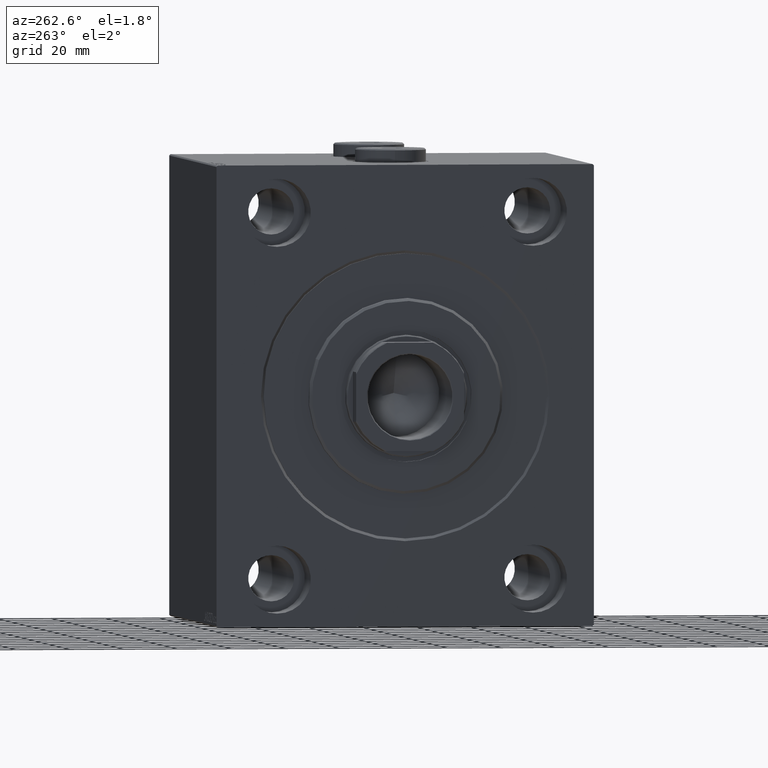
[diagram: clean part render]
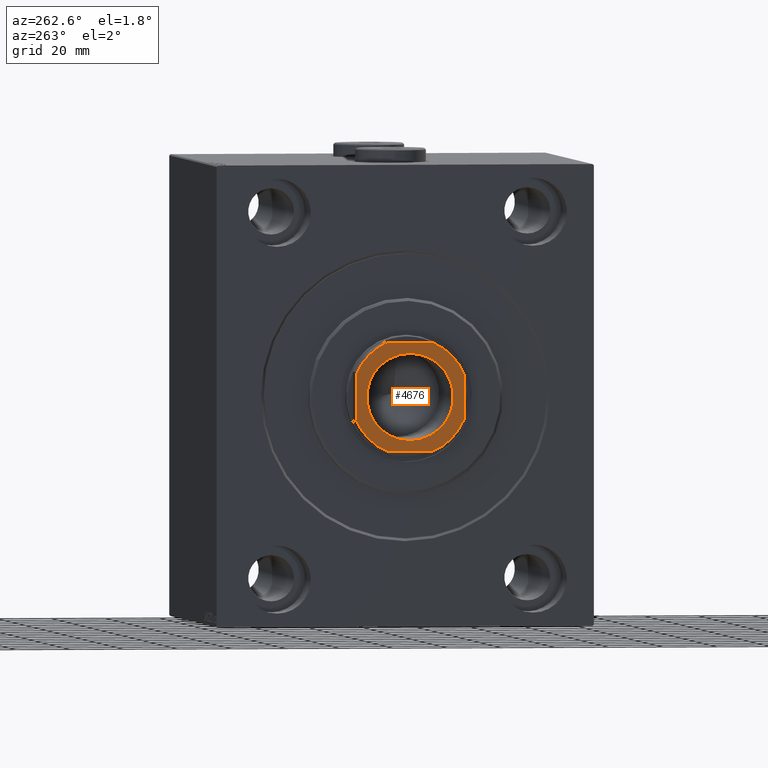
[diagram: same view with one face highlighted and labeled with its STEP entity id]
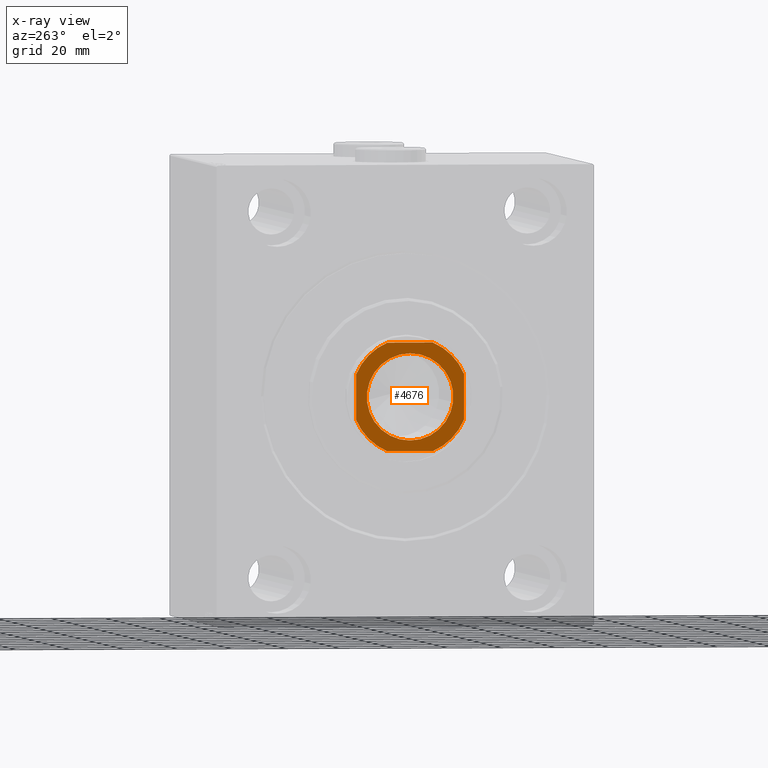
[diagram: x-ray of the same camera — body ghosted, the highlighted face saturated]
A machine part, auxiliary view. The second image highlights one B-rep face of the part: STEP entity #4676.
The next image is the same camera in x-ray: the body ghosted, the highlighted face saturated — about 0% of this face is hidden behind the body in this view.
In plain terms, the highlighted planar face has unit normal (-1, 0, 0).
Its self-contained STEP definition (entity closure, byte-faithful):
#11 = DIRECTION ( 'NONE',  ( 1.000000000000000000, 0.000000000000000000, 0.000000000000000000 ) ) ;
#673 = FACE_OUTER_BOUND ( 'NONE', #36824, .T. ) ;
#923 = EDGE_CURVE ( 'NONE', #41011, #27103, #29049, .T. ) ;
#1531 = VECTOR ( 'NONE', #15145, 1000.000000000000000 ) ;
#1648 = ORIENTED_EDGE ( 'NONE', *, *, #41268, .T. ) ;
#2029 = ORIENTED_EDGE ( 'NONE', *, *, #24207, .T. ) ;
#2078 = DIRECTION ( 'NONE',  ( -2.602085213965210149E-16, 1.000000000000000000, -0.000000000000000000 ) ) ;
#2164 = CARTESIAN_POINT ( 'NONE',  ( 0.000000000000000000, 0.000000000000000000, 64.99999999999998579 ) ) ;
#3397 = ORIENTED_EDGE ( 'NONE', *, *, #35461, .T. ) ;
#3715 = DIRECTION ( 'NONE',  ( 1.000000000000000000, 0.000000000000000000, 0.000000000000000000 ) ) ;
#3768 = DIRECTION ( 'NONE',  ( -1.000000000000000000, -8.673617379884035472E-17, -0.000000000000000000 ) ) ;
#4646 = VERTEX_POINT ( 'NONE', #38772 ) ;
#4676 = ADVANCED_FACE ( 'NONE', ( #27620, #673 ), #39005, .T. ) ;
#4681 = EDGE_CURVE ( 'NONE', #27103, #41011, #11596, .T. ) ;
#5441 = EDGE_CURVE ( 'NONE', #20446, #16050, #12238, .T. ) ;
#7042 = AXIS2_PLACEMENT_3D ( 'NONE', #37673, #40880, #41326 ) ;
#8657 = AXIS2_PLACEMENT_3D ( 'NONE', #24629, #13918, #14354 ) ;
#8899 = EDGE_CURVE ( 'NONE', #33283, #20446, #30145, .T. ) ;
#9004 = VERTEX_POINT ( 'NONE', #30828 ) ;
#9588 = VERTEX_POINT ( 'NONE', #23643 ) ;
#9604 = EDGE_CURVE ( 'NONE', #9588, #9004, #17679, .T. ) ;
#10147 = CIRCLE ( 'NONE', #35650, 21.70000000000001705 ) ;
#10684 = EDGE_CURVE ( 'NONE', #16050, #4646, #11070, .T. ) ;
#10872 = VECTOR ( 'NONE', #2078, 1000.000000000000000 ) ;
#10903 = ORIENTED_EDGE ( 'NONE', *, *, #923, .T. ) ;
#11070 = LINE ( 'NONE', #35476, #12366 ) ;
#11596 = CIRCLE ( 'NONE', #8657, 16.04999999999996874 ) ;
#12160 = ORIENTED_EDGE ( 'NONE', *, *, #9604, .T. ) ;
#12238 = CIRCLE ( 'NONE', #26909, 21.70000000000000639 ) ;
#12366 = VECTOR ( 'NONE', #3768, 1000.000000000000000 ) ;
#12900 = CARTESIAN_POINT ( 'NONE',  ( 8.419619943916702098, -20.00000000000001066, 64.99999999999998579 ) ) ;
#13293 = EDGE_LOOP ( 'NONE', ( #34259, #10903 ) ) ;
#13362 = DIRECTION ( 'NONE',  ( -0.000000000000000000, 0.000000000000000000, 1.000000000000000000 ) ) ;
#13918 = DIRECTION ( 'NONE',  ( 0.000000000000000000, -0.000000000000000000, -1.000000000000000000 ) ) ;
#14145 = EDGE_CURVE ( 'NONE', #26152, #19473, #15607, .T. ) ;
#14249 = DIRECTION ( 'NONE',  ( 1.000000000000000000, 0.000000000000000000, 0.000000000000000000 ) ) ;
#14354 = DIRECTION ( 'NONE',  ( 1.000000000000000000, 0.000000000000000000, 0.000000000000000000 ) ) ;
#14578 = DIRECTION ( 'NONE',  ( -0.000000000000000000, 0.000000000000000000, 1.000000000000000000 ) ) ;
#15145 = DIRECTION ( 'NONE',  ( 1.000000000000000000, 0.000000000000000000, 0.000000000000000000 ) ) ;
#15607 = LINE ( 'NONE', #43456, #1531 ) ;
#16050 = VERTEX_POINT ( 'NONE', #36535 ) ;
#17337 = CARTESIAN_POINT ( 'NONE',  ( 0.000000000000000000, 0.000000000000000000, 64.99999999999998579 ) ) ;
#17405 = CARTESIAN_POINT ( 'NONE',  ( 16.04999999999996874, 0.000000000000000000, 64.99999999999998579 ) ) ;
#17679 = LINE ( 'NONE', #31822, #24712 ) ;
#18425 = CIRCLE ( 'NONE', #43943, 21.70000000000000639 ) ;
#19410 = CARTESIAN_POINT ( 'NONE',  ( 19.99999999999999289, 19.99999999999999289, 64.99999999999998579 ) ) ;
#19473 = VERTEX_POINT ( 'NONE', #12900 ) ;
#20446 = VERTEX_POINT ( 'NONE', #33390 ) ;
#21055 = CARTESIAN_POINT ( 'NONE',  ( 0.000000000000000000, 0.000000000000000000, 64.99999999999998579 ) ) ;
#21905 = DIRECTION ( 'NONE',  ( 1.000000000000000000, 0.000000000000000000, 0.000000000000000000 ) ) ;
#21922 = CARTESIAN_POINT ( 'NONE',  ( 20.00000000000000000, -8.419619943916732296, 64.99999999999998579 ) ) ;
#22581 = DIRECTION ( 'NONE',  ( -0.000000000000000000, 0.000000000000000000, 1.000000000000000000 ) ) ;
#23643 = CARTESIAN_POINT ( 'NONE',  ( -20.00000000000000355, 8.419619943916735849, 64.99999999999998579 ) ) ;
#24207 = EDGE_CURVE ( 'NONE', #19473, #33283, #18425, .T. ) ;
#24629 = CARTESIAN_POINT ( 'NONE',  ( 0.000000000000000000, 0.000000000000000000, 64.99999999999998579 ) ) ;
#24712 = VECTOR ( 'NONE', #38904, 1000.000000000000000 ) ;
#25168 = ORIENTED_EDGE ( 'NONE', *, *, #5441, .T. ) ;
#25424 = CARTESIAN_POINT ( 'NONE',  ( -8.419619943916726967, -20.00000000000001066, 64.99999999999998579 ) ) ;
#25792 = CARTESIAN_POINT ( 'NONE',  ( 0.000000000000000000, 0.000000000000000000, 64.99999999999998579 ) ) ;
#26152 = VERTEX_POINT ( 'NONE', #25424 ) ;
#26725 = CIRCLE ( 'NONE', #7042, 21.70000000000001705 ) ;
#26909 = AXIS2_PLACEMENT_3D ( 'NONE', #35017, #13362, #14249 ) ;
#27103 = VERTEX_POINT ( 'NONE', #17405 ) ;
#27620 = FACE_BOUND ( 'NONE', #13293, .T. ) ;
#29049 = CIRCLE ( 'NONE', #41483, 16.04999999999996874 ) ;
#29072 = ORIENTED_EDGE ( 'NONE', *, *, #10684, .T. ) ;
#30145 = LINE ( 'NONE', #19410, #10872 ) ;
#30828 = CARTESIAN_POINT ( 'NONE',  ( -20.00000000000000000, -8.419619943916748284, 64.99999999999998579 ) ) ;
#30855 = ORIENTED_EDGE ( 'NONE', *, *, #8899, .T. ) ;
#31822 = CARTESIAN_POINT ( 'NONE',  ( -20.00000000000000711, 19.99999999999998934, 64.99999999999998579 ) ) ;
#33283 = VERTEX_POINT ( 'NONE', #21922 ) ;
#33390 = CARTESIAN_POINT ( 'NONE',  ( 19.99999999999999289, 8.419619943916742955, 64.99999999999998579 ) ) ;
#34259 = ORIENTED_EDGE ( 'NONE', *, *, #4681, .T. ) ;
#34979 = DIRECTION ( 'NONE',  ( -0.000000000000000000, 0.000000000000000000, 1.000000000000000000 ) ) ;
#35017 = CARTESIAN_POINT ( 'NONE',  ( 0.000000000000000000, 0.000000000000000000, 64.99999999999998579 ) ) ;
#35461 = EDGE_CURVE ( 'NONE', #9004, #26152, #26725, .T. ) ;
#35476 = CARTESIAN_POINT ( 'NONE',  ( -20.00000000000000711, 19.99999999999998934, 64.99999999999998579 ) ) ;
#35650 = AXIS2_PLACEMENT_3D ( 'NONE', #25792, #22581, #21905 ) ;
#36535 = CARTESIAN_POINT ( 'NONE',  ( 8.419619943916742955, 19.99999999999999289, 64.99999999999998579 ) ) ;
#36824 = EDGE_LOOP ( 'NONE', ( #30855, #25168, #29072, #1648, #12160, #3397, #39294, #2029 ) ) ;
#37673 = CARTESIAN_POINT ( 'NONE',  ( 0.000000000000000000, 0.000000000000000000, 64.99999999999998579 ) ) ;
#38772 = CARTESIAN_POINT ( 'NONE',  ( -8.419619943916771376, 19.99999999999999289, 64.99999999999998579 ) ) ;
#38904 = DIRECTION ( 'NONE',  ( 2.602085213965210642E-16, -1.000000000000000000, 0.000000000000000000 ) ) ;
#39005 = PLANE ( 'NONE',  #45129 ) ;
#39294 = ORIENTED_EDGE ( 'NONE', *, *, #14145, .T. ) ;
#40719 = DIRECTION ( 'NONE',  ( 0.000000000000000000, -0.000000000000000000, -1.000000000000000000 ) ) ;
#40880 = DIRECTION ( 'NONE',  ( -0.000000000000000000, 0.000000000000000000, 1.000000000000000000 ) ) ;
#41011 = VERTEX_POINT ( 'NONE', #43024 ) ;
#41268 = EDGE_CURVE ( 'NONE', #4646, #9588, #10147, .T. ) ;
#41326 = DIRECTION ( 'NONE',  ( 1.000000000000000000, 0.000000000000000000, 0.000000000000000000 ) ) ;
#41483 = AXIS2_PLACEMENT_3D ( 'NONE', #2164, #40719, #44607 ) ;
#43024 = CARTESIAN_POINT ( 'NONE',  ( -16.04999999999996874, 1.965558112631497866E-15, 64.99999999999998579 ) ) ;
#43456 = CARTESIAN_POINT ( 'NONE',  ( -19.99999999999999645, -20.00000000000001066, 64.99999999999998579 ) ) ;
#43943 = AXIS2_PLACEMENT_3D ( 'NONE', #21055, #34979, #3715 ) ;
#44607 = DIRECTION ( 'NONE',  ( 1.000000000000000000, 0.000000000000000000, 0.000000000000000000 ) ) ;
#45129 = AXIS2_PLACEMENT_3D ( 'NONE', #17337, #14578, #11 ) ;